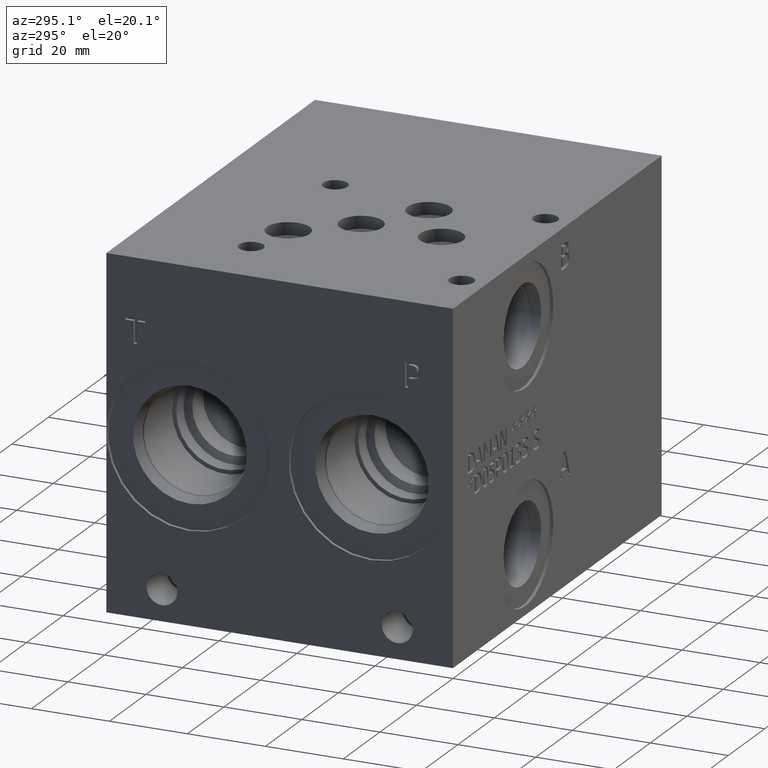
[diagram: clean part render]
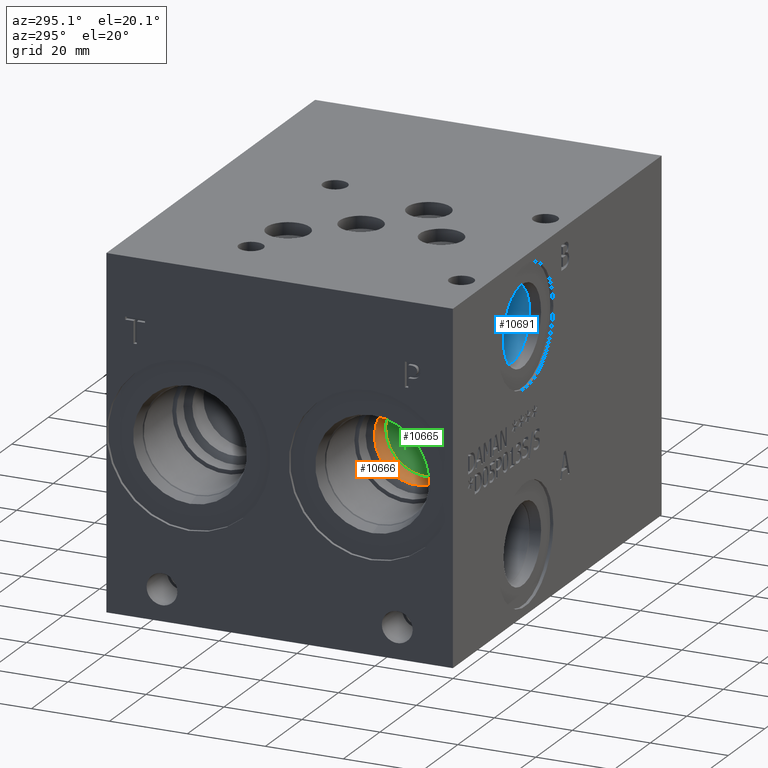
[diagram: same view with three faces highlighted in distinct colors, each labeled with its STEP entity id]
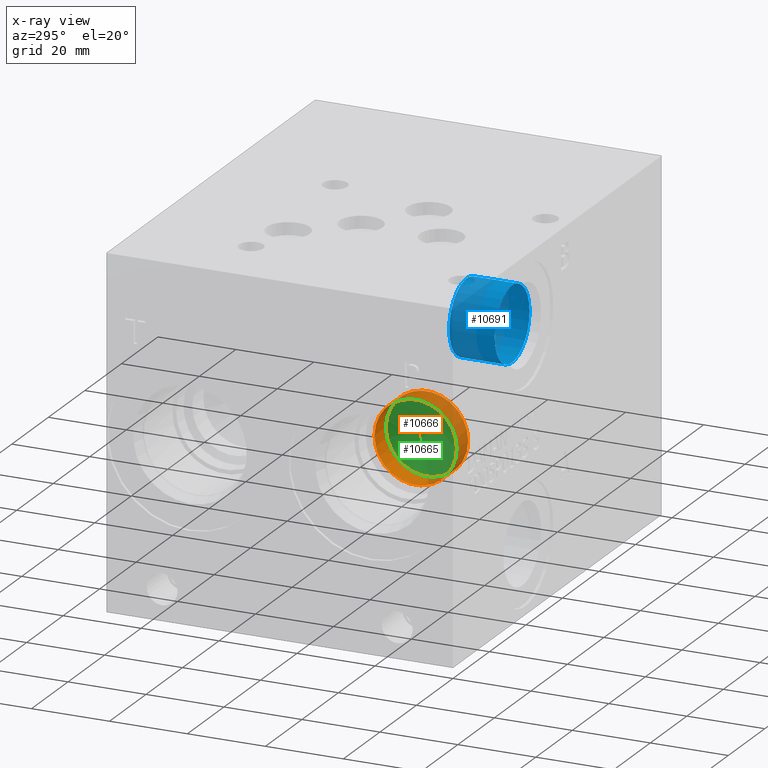
[diagram: x-ray of the same camera — body ghosted, the three highlighted faces saturated]
A machine part, auxiliary view with three faces highlighted in distinct colors.
The next image is the same camera in x-ray (body ghosted, the three faces saturated) — at least one of them is partly hidden behind the body in this view.
Their STEP definitions:

[orange] entity #10666 — the highlighted cylindrical surface (bore or boss wall) has radius 10.5918 mm, axis along (-1, 0, 0).
#38=CYLINDRICAL_SURFACE('',#11184,10.5918);
#205=CIRCLE('',#11182,10.5918);
#206=CIRCLE('',#11183,10.5918);
#207=CIRCLE('',#11185,10.5918);
#1185=FACE_OUTER_BOUND('',#1790,.T.);
#1790=EDGE_LOOP('',(#9251,#9252,#9253,#9254,#9255));
#2813=LINE('',#18208,#3799);
#3799=VECTOR('',#13168,10.5918);
#5039=VERTEX_POINT('',#18199);
#5040=VERTEX_POINT('',#18200);
#5042=VERTEX_POINT('',#18206);
#6483=EDGE_CURVE('',#5039,#5040,#205,.T.);
#6485=EDGE_CURVE('',#5040,#5039,#206,.T.);
#6486=EDGE_CURVE('',#5042,#5042,#207,.T.);
#6487=EDGE_CURVE('',#5042,#5040,#2813,.T.);
#9251=ORIENTED_EDGE('',*,*,#6486,.F.);
#9252=ORIENTED_EDGE('',*,*,#6487,.T.);
#9253=ORIENTED_EDGE('',*,*,#6483,.F.);
#9254=ORIENTED_EDGE('',*,*,#6485,.F.);
#9255=ORIENTED_EDGE('',*,*,#6487,.F.);
#10666=ADVANCED_FACE('',(#1185),#38,.F.);
#11182=AXIS2_PLACEMENT_3D('',#18201,#13159,#13160);
#11183=AXIS2_PLACEMENT_3D('',#18204,#13162,#13163);
#11184=AXIS2_PLACEMENT_3D('',#18205,#13164,#13165);
#11185=AXIS2_PLACEMENT_3D('',#18207,#13166,#13167);
#13159=DIRECTION('center_axis',(-1.,0.,0.));
#13160=DIRECTION('ref_axis',(0.,1.,0.));
#13162=DIRECTION('center_axis',(-1.,0.,0.));
#13163=DIRECTION('ref_axis',(0.,1.,0.));
#13164=DIRECTION('center_axis',(-1.,0.,0.));
#13165=DIRECTION('ref_axis',(0.,1.,0.));
#13166=DIRECTION('center_axis',(1.,0.,0.));
#13167=DIRECTION('ref_axis',(0.,1.,0.));
#13168=DIRECTION('',(1.,0.,0.));
#18199=CARTESIAN_POINT('',(30.74618,31.6738,44.45));
#18200=CARTESIAN_POINT('',(30.74618,10.4902,44.45));
#18201=CARTESIAN_POINT('Origin',(30.74618,21.082,44.45));
#18204=CARTESIAN_POINT('Origin',(30.74618,21.082,44.45));
#18205=CARTESIAN_POINT('Origin',(15.37309,21.082,44.45));
#18206=CARTESIAN_POINT('',(24.6309974326025,10.4902,44.45));
#18207=CARTESIAN_POINT('Origin',(24.6309974326025,21.082,44.45));
#18208=CARTESIAN_POINT('',(15.37309,10.4902,44.45));

[blue] entity #10691 — the highlighted cylindrical surface (bore or boss wall) has radius 9.525 mm, axis along (0, -1, 0).
#49=CYLINDRICAL_SURFACE('',#11250,9.525);
#245=CIRCLE('',#11247,9.525);
#246=CIRCLE('',#11248,9.525);
#248=CIRCLE('',#11251,9.525);
#1210=FACE_OUTER_BOUND('',#1820,.T.);
#1820=EDGE_LOOP('',(#9374,#9375,#9376,#9377,#9378));
#2833=LINE('',#18337,#3819);
#3819=VECTOR('',#13320,9.525);
#5082=VERTEX_POINT('',#18328);
#5083=VERTEX_POINT('',#18329);
#5085=VERTEX_POINT('',#18335);
#6544=EDGE_CURVE('',#5082,#5083,#245,.T.);
#6545=EDGE_CURVE('',#5083,#5082,#246,.T.);
#6547=EDGE_CURVE('',#5085,#5085,#248,.T.);
#6548=EDGE_CURVE('',#5085,#5083,#2833,.T.);
#9374=ORIENTED_EDGE('',*,*,#6547,.F.);
#9375=ORIENTED_EDGE('',*,*,#6548,.T.);
#9376=ORIENTED_EDGE('',*,*,#6544,.F.);
#9377=ORIENTED_EDGE('',*,*,#6545,.F.);
#9378=ORIENTED_EDGE('',*,*,#6548,.F.);
#10691=ADVANCED_FACE('',(#1210),#49,.F.);
#11247=AXIS2_PLACEMENT_3D('',#18330,#13310,#13311);
#11248=AXIS2_PLACEMENT_3D('',#18331,#13312,#13313);
#11250=AXIS2_PLACEMENT_3D('',#18334,#13316,#13317);
#11251=AXIS2_PLACEMENT_3D('',#18336,#13318,#13319);
#13310=DIRECTION('center_axis',(0.,-1.,0.));
#13311=DIRECTION('ref_axis',(1.,0.,0.));
#13312=DIRECTION('center_axis',(0.,-1.,0.));
#13313=DIRECTION('ref_axis',(1.,0.,0.));
#13316=DIRECTION('center_axis',(0.,-1.,0.));
#13317=DIRECTION('ref_axis',(1.,0.,0.));
#13318=DIRECTION('center_axis',(0.,1.,0.));
#13319=DIRECTION('ref_axis',(1.,0.,0.));
#13320=DIRECTION('',(0.,1.,0.));
#18328=CARTESIAN_POINT('',(49.1998,15.0622,71.4248));
#18329=CARTESIAN_POINT('',(30.1498,15.0622,71.4248));
#18330=CARTESIAN_POINT('Origin',(39.6748,15.0622,71.4248));
#18331=CARTESIAN_POINT('Origin',(39.6748,15.0622,71.4248));
#18334=CARTESIAN_POINT('Origin',(39.6748,7.5311,71.4248));
#18335=CARTESIAN_POINT('',(30.1498,3.4036,71.4248));
#18336=CARTESIAN_POINT('Origin',(39.6748,3.4036,71.4248));
#18337=CARTESIAN_POINT('',(30.1498,7.5311,71.4248));

[green] entity #10665 — the highlighted conical surface has half-angle 60 deg.
#85=CONICAL_SURFACE('',#11181,5.2959,1.0471975511966);
#205=CIRCLE('',#11182,10.5918);
#206=CIRCLE('',#11183,10.5918);
#1184=FACE_OUTER_BOUND('',#1789,.T.);
#1789=EDGE_LOOP('',(#9247,#9248,#9249,#9250));
#2812=LINE('',#18203,#3798);
#3798=VECTOR('',#13161,5.2959);
#5039=VERTEX_POINT('',#18199);
#5040=VERTEX_POINT('',#18200);
#5041=VERTEX_POINT('',#18202);
#6483=EDGE_CURVE('',#5039,#5040,#205,.T.);
#6484=EDGE_CURVE('',#5040,#5041,#2812,.T.);
#6485=EDGE_CURVE('',#5040,#5039,#206,.T.);
#9247=ORIENTED_EDGE('',*,*,#6483,.T.);
#9248=ORIENTED_EDGE('',*,*,#6484,.T.);
#9249=ORIENTED_EDGE('',*,*,#6484,.F.);
#9250=ORIENTED_EDGE('',*,*,#6485,.T.);
#10665=ADVANCED_FACE('',(#1184),#85,.F.);
#11181=AXIS2_PLACEMENT_3D('',#18198,#13157,#13158);
#11182=AXIS2_PLACEMENT_3D('',#18201,#13159,#13160);
#11183=AXIS2_PLACEMENT_3D('',#18204,#13162,#13163);
#13157=DIRECTION('center_axis',(-1.,0.,0.));
#13158=DIRECTION('ref_axis',(0.,1.,0.));
#13159=DIRECTION('center_axis',(-1.,0.,0.));
#13160=DIRECTION('ref_axis',(0.,1.,0.));
#13161=DIRECTION('',(0.5,0.866025403784438,-1.06057523872491E-16));
#13162=DIRECTION('center_axis',(-1.,0.,0.));
#13163=DIRECTION('ref_axis',(0.,1.,0.));
#18198=CARTESIAN_POINT('Origin',(33.8037692906013,21.082,44.45));
#18199=CARTESIAN_POINT('',(30.74618,31.6738,44.45));
#18200=CARTESIAN_POINT('',(30.74618,10.4902,44.45));
#18201=CARTESIAN_POINT('Origin',(30.74618,21.082,44.45));
#18202=CARTESIAN_POINT('',(36.8613585812027,21.082,44.45));
#18203=CARTESIAN_POINT('',(33.8037692906013,15.7861,44.45));
#18204=CARTESIAN_POINT('Origin',(30.74618,21.082,44.45));